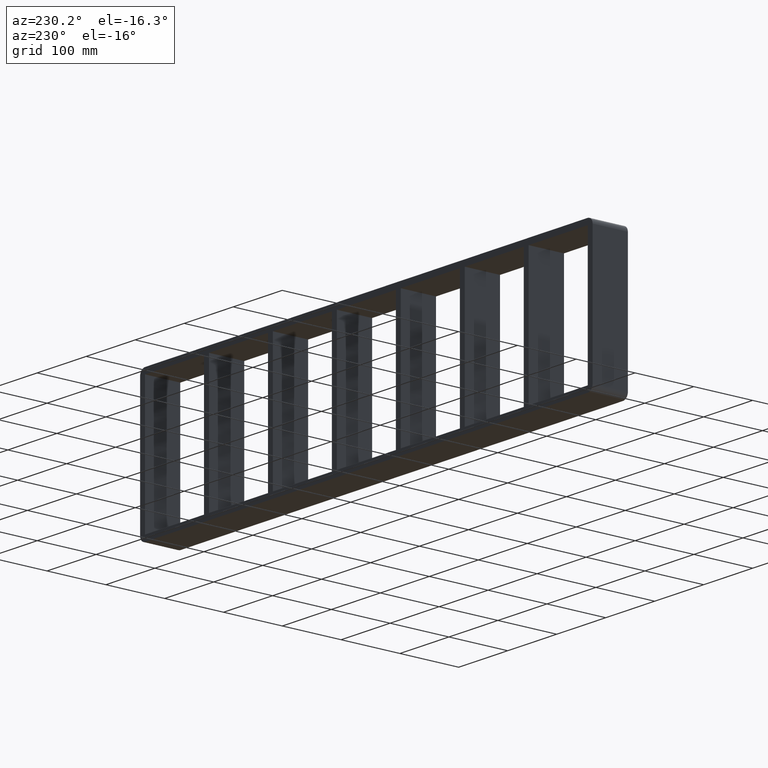
[diagram: clean part render]
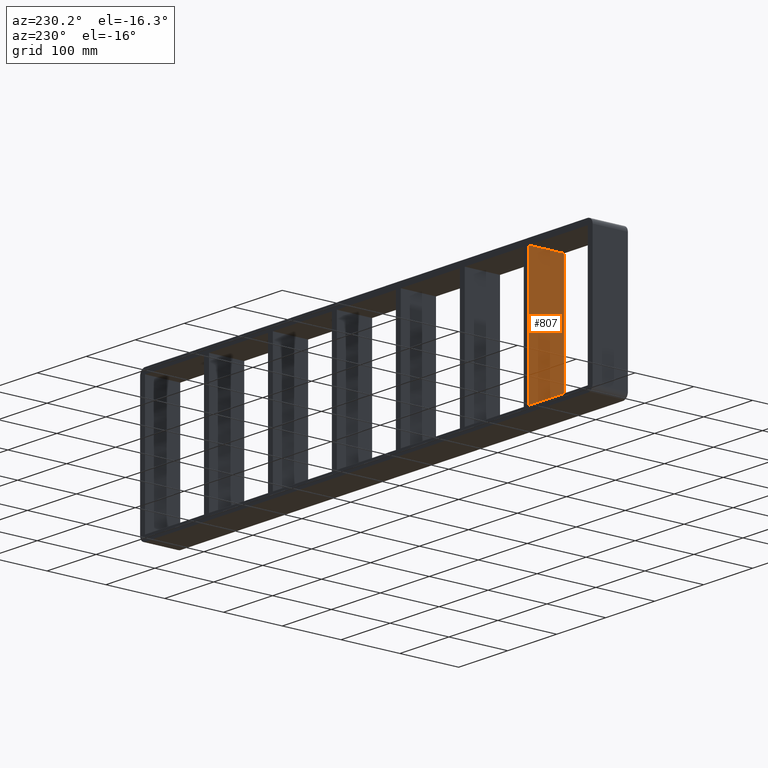
[diagram: same view with one face highlighted and labeled with its STEP entity id]
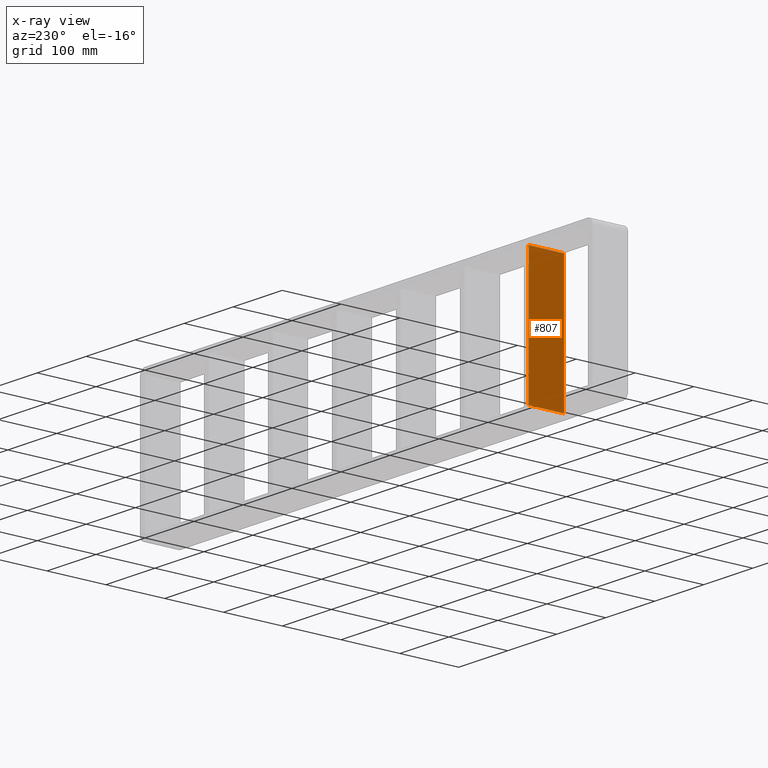
[diagram: x-ray of the same camera — body ghosted, the highlighted face saturated]
A machine part, auxiliary view. The second image highlights one B-rep face of the part: STEP entity #807.
The next image is the same camera in x-ray: the body ghosted, the highlighted face saturated — about 0% of this face is hidden behind the body in this view.
In plain terms, the highlighted planar face has unit normal (-1, 0, 0).
Its self-contained STEP definition (entity closure, byte-faithful):
#768=CARTESIAN_POINT('',(-331.25000000000125,-3.0,-109.0));
#769=DIRECTION('',(-1.0,0.0,0.0));
#770=DIRECTION('',(0.0,0.0,1.0));
#771=AXIS2_PLACEMENT_3D('',#768,#769,#770);
#772=PLANE('',#771);
#773=CARTESIAN_POINT('',(-331.25000000000125,-3.0,-109.0));
#774=VERTEX_POINT('',#773);
#775=CARTESIAN_POINT('',(-331.25000000000136,-3.0,108.99999999999997));
#776=VERTEX_POINT('',#775);
#777=CARTESIAN_POINT('',(-331.25000000000125,-3.0,-109.0));
#778=DIRECTION('',(0.0,0.0,1.0));
#779=VECTOR('',#778,217.99999999999997);
#780=LINE('',#777,#779);
#781=EDGE_CURVE('',#774,#776,#780,.T.);
#782=ORIENTED_EDGE('',*,*,#781,.T.);
#783=CARTESIAN_POINT('',(-331.25000000000136,57.0,108.99999999999997));
#784=VERTEX_POINT('',#783);
#785=CARTESIAN_POINT('',(-331.25000000000125,57.000000000000007,108.99999999999999));
#786=DIRECTION('',(0.0,-1.0,0.0));
#787=VECTOR('',#786,60.000000000000007);
#788=LINE('',#785,#787);
#789=EDGE_CURVE('',#784,#776,#788,.T.);
#790=ORIENTED_EDGE('',*,*,#789,.F.);
#791=CARTESIAN_POINT('',(-331.25000000000125,57.0,-109.0));
#792=VERTEX_POINT('',#791);
#793=CARTESIAN_POINT('',(-331.25000000000125,57.0,-109.0));
#794=DIRECTION('',(0.0,0.0,1.0));
#795=VECTOR('',#794,217.99999999999997);
#796=LINE('',#793,#795);
#797=EDGE_CURVE('',#792,#784,#796,.T.);
#798=ORIENTED_EDGE('',*,*,#797,.F.);
#799=CARTESIAN_POINT('',(-331.25000000000125,-3.0,-109.0));
#800=DIRECTION('',(0.0,1.0,0.0));
#801=VECTOR('',#800,60.000000000000007);
#802=LINE('',#799,#801);
#803=EDGE_CURVE('',#774,#792,#802,.T.);
#804=ORIENTED_EDGE('',*,*,#803,.F.);
#805=EDGE_LOOP('',(#782,#790,#798,#804));
#806=FACE_OUTER_BOUND('',#805,.T.);
#807=ADVANCED_FACE('',(#806),#772,.T.);